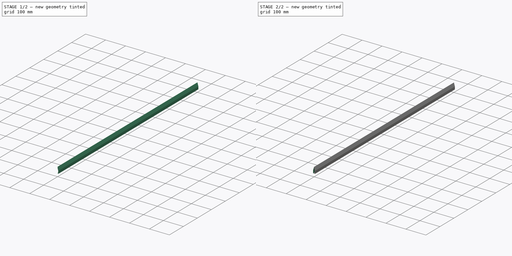
[diagram: build sequence overview — one tinted view per stage of 2, left to right]
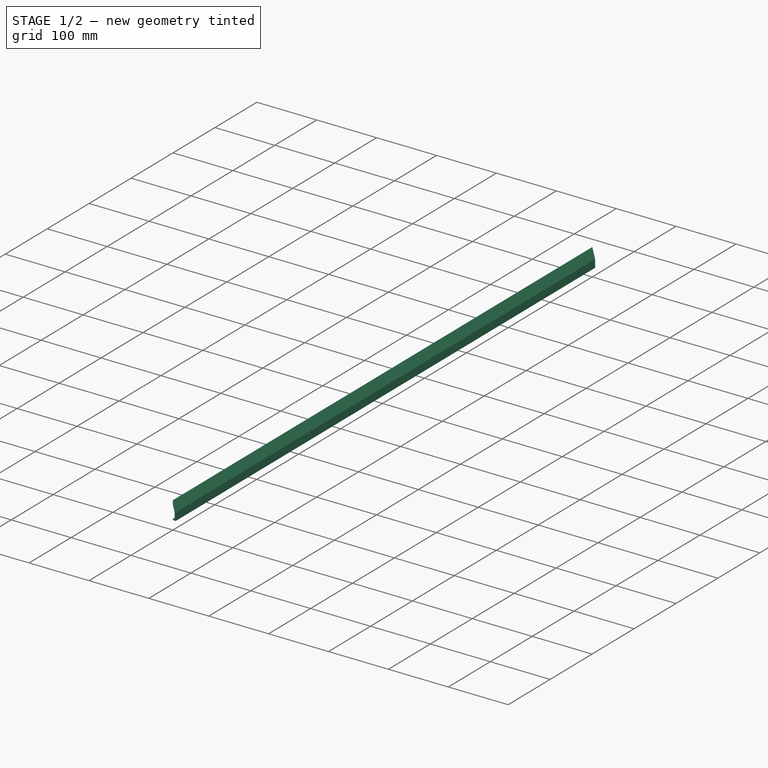
[diagram: stage 1 of 2 — iso view after this stage's code; geometry added in this stage tinted green]
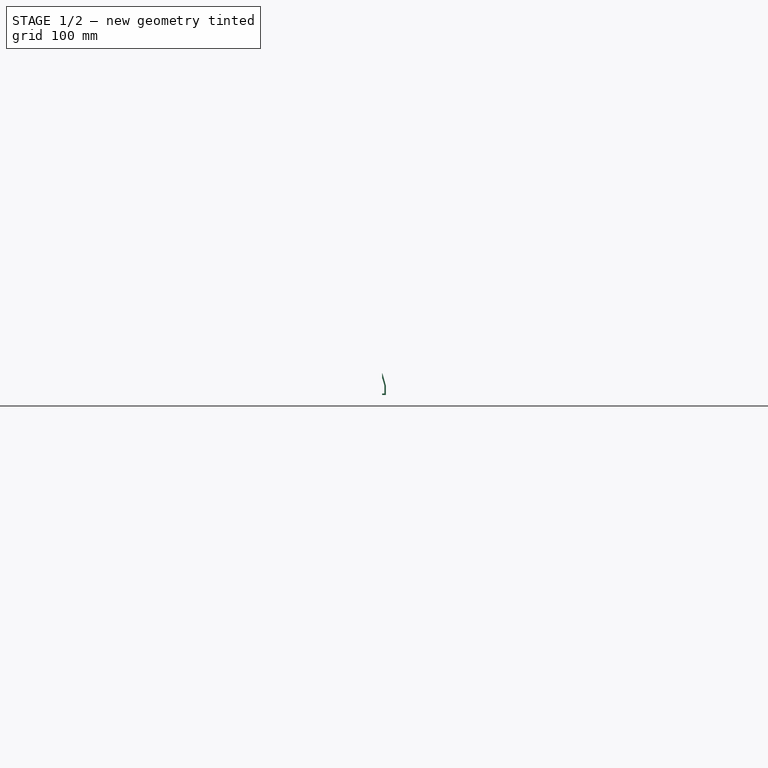
[diagram: stage 1 of 2 — front view after this stage's code; geometry added in this stage tinted green]
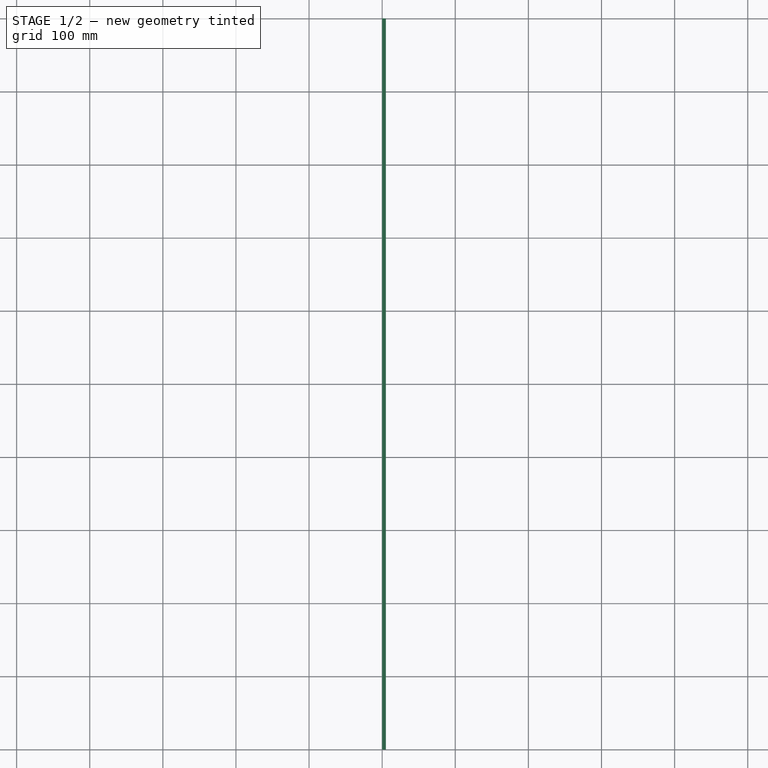
[diagram: stage 1 of 2 — top view after this stage's code; geometry added in this stage tinted green]
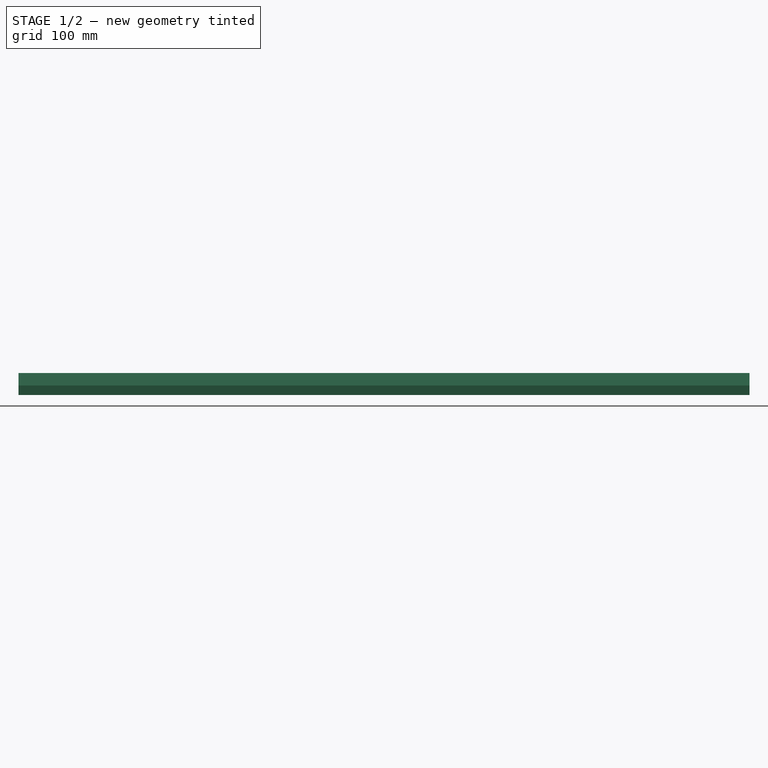
[diagram: stage 1 of 2 — right view after this stage's code; geometry added in this stage tinted green]
FCSTD DOCUMENT  (FreeCAD 0.21R32532 (Git))
Label: AL-Laser1030
License: All rights reserved
LicenseURL: http://en.wikipedia.org/wiki/All_rights_reserved
objects: PartDesign::CoordinateSystem×6, Sketcher::SketchObject×1, PartDesign::Pad×1, PartDesign::Mirrored×1, PartDesign::Body×1
note: 11 computed .brp shape members not serialized (recipe doc carries the construction recipe); baked Part::Feature solids carry a one-line shape summary decoded from their .brp

FEATURE [Sketcher::SketchObject] Sketch
  FullyConstrained = true
  MapMode = 5
  Placement = pos=(0,0,0) rot=(1,0,0;1.5708rad)
  Support = -> [XZ_Plane]
  sketch-geometry (10):
    g0: LineSegment StartX=0 StartY=0 StartZ=0 EndX=5 EndY=0 EndZ=0
    g1: LineSegment StartX=5 StartY=0 StartZ=0 EndX=5 EndY=13 EndZ=0
    g2: LineSegment StartX=5 StartY=13 StartZ=0 EndX=0.288833 EndY=29.7811 EndZ=0
    g3: LineSegment StartX=0.481389 StartY=21.9712 StartZ=0 EndX=3 EndY=13 EndZ=0
    g4: LineSegment StartX=3 StartY=13 StartZ=0 EndX=3 EndY=2 EndZ=0
    g5: LineSegment StartX=3 StartY=2 StartZ=0 EndX=0 EndY=2 EndZ=0
    g6: LineSegment StartX=0 StartY=2 StartZ=0 EndX=0 EndY=0 EndZ=0
    g7: LineSegment StartX=0 StartY=22.3361 StartZ=0 EndX=0 EndY=30 EndZ=0
    g8: ArcOfCircle CenterX=0 CenterY=21.8361 CenterZ=0 NormalX=0 NormalY=0 NormalZ=1 AngleXU=0 Radius=0.5 StartAngle=0.273697 EndAngle=1.5708
    g9: ArcOfCircle CenterX=0 CenterY=29.7 CenterZ=0 NormalX=0 NormalY=0 NormalZ=1 AngleXU=0 Radius=0.3 StartAngle=0.273697 EndAngle=1.5708
  constraints (29):
    c: Coincident(g-1,g0)
    c: PointOnObject(g0,g-1)
    c: Coincident(g0,g1)
    c: Vertical(g1)
    c: Coincident(g1,g2)
    c: Coincident(g3,g4)
    c: Vertical(g4)
    c: Coincident(g4,g5)
    c: PointOnObject(g5,g-2)
    c: Horizontal(g5)
    c: Coincident(g5,g6)
    c: Coincident(g6,g0)
    c: PointOnObject(g7,g-2)
    c: PointOnObject(g7,g-2)
    c: PointOnObject(g8,g-2)
    c: Coincident(g8,g7)
    c: PointOnObject(g9,g-2)
    c: Coincident(g9,g7)
    c: Tangent(g9,g2) = -1.5708
    c: Tangent(g8,g3) = 1.5708
    c: Diameter(g9) = 0.6
    c: Diameter(g8) = 1
    c: Distance(g0) = 5
    c: Distance(g5) = 3
    c: DistanceY(g5) = 2
    c: DistanceY(g9) = 29.7
    c: DistanceY(g1,g1) = 13
    c: DistanceY(g4,g4) = 11
    c: Parallel(g3,g2)
FEATURE [PartDesign::Pad] Pad
  Direction = (0,-1,-2e-16)
  Length = 1000
  Length2 = 10
  Placement = pos=(0,0,0) rot=(1,0,0;1.5708rad)
  Profile = -> Sketch
  ReferenceAxis = -> Sketch [N_Axis]
  Reversed = true
  Type = 0
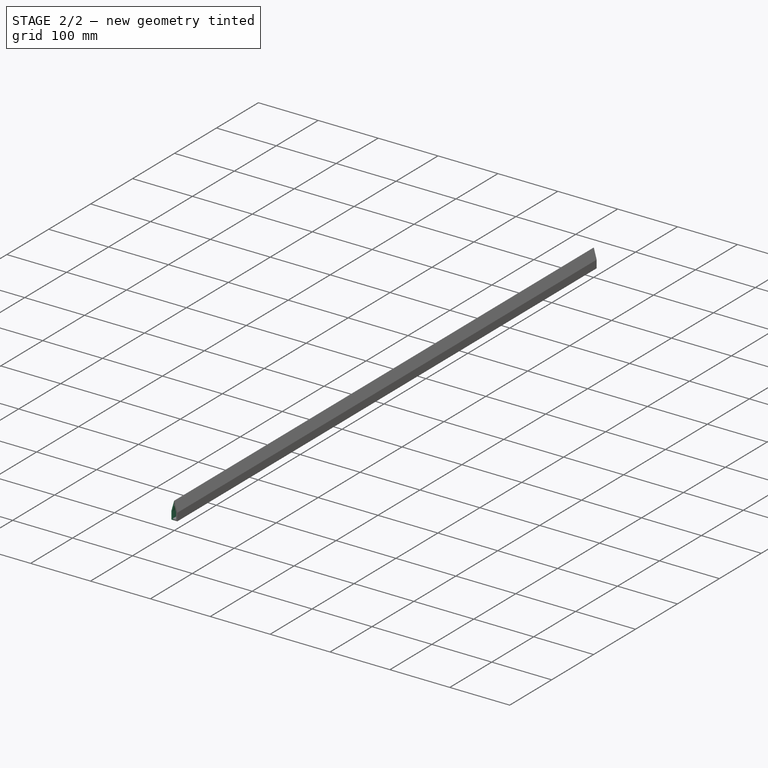
[diagram: stage 2 of 2 — iso view after this stage's code; geometry added in this stage tinted green]
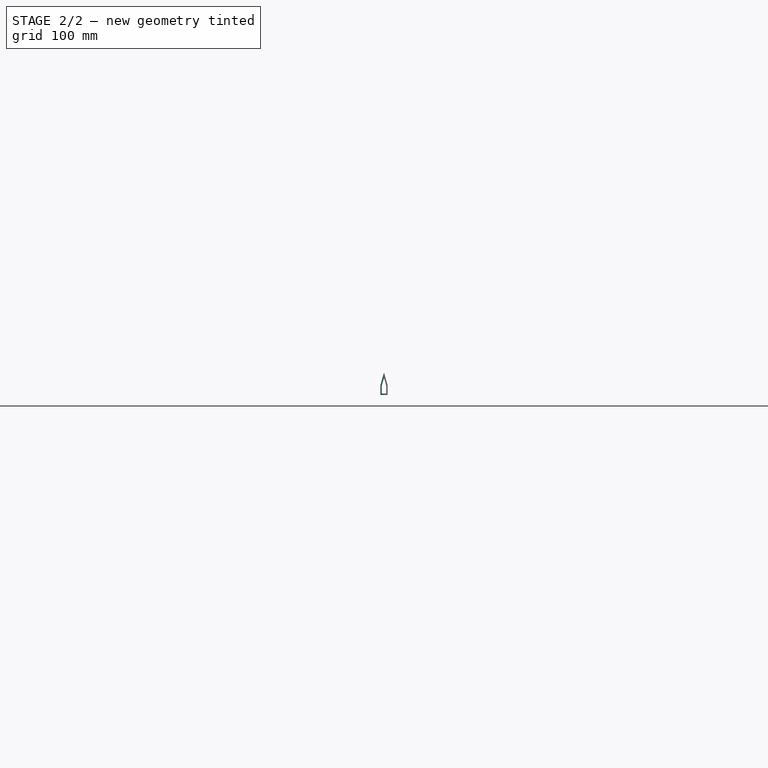
[diagram: stage 2 of 2 — front view after this stage's code; geometry added in this stage tinted green]
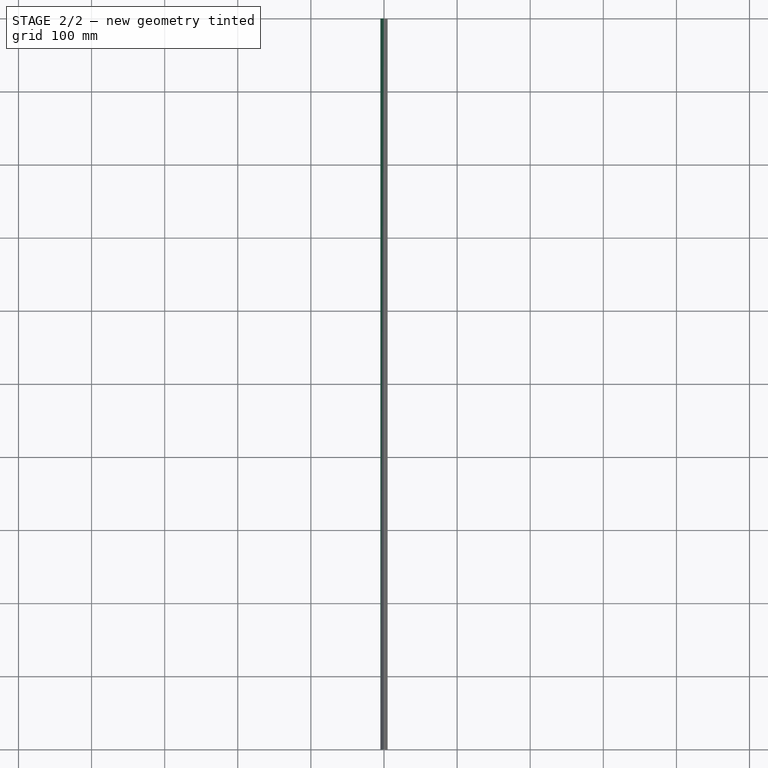
[diagram: stage 2 of 2 — top view after this stage's code; geometry added in this stage tinted green]
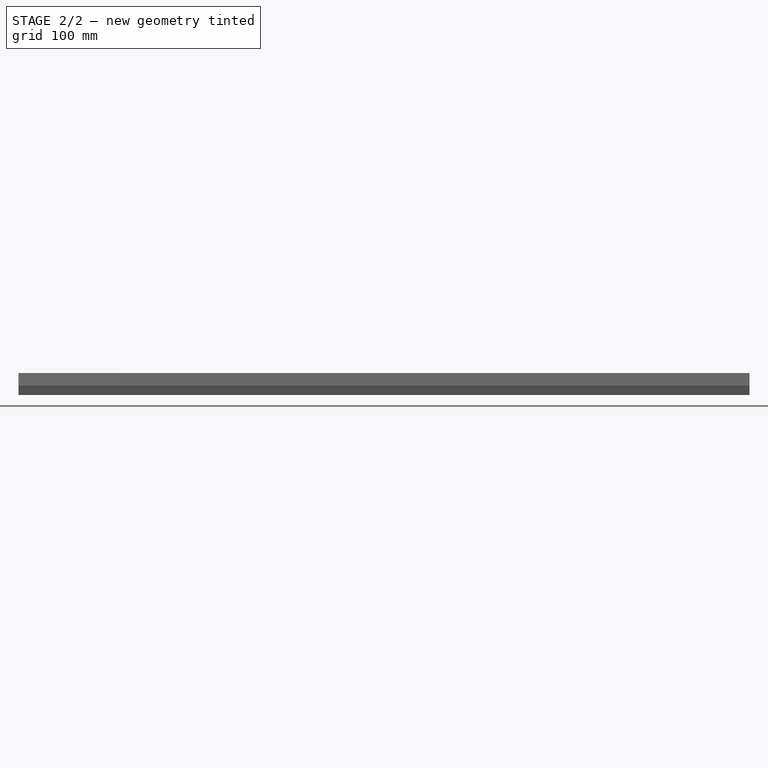
[diagram: stage 2 of 2 — right view after this stage's code; geometry added in this stage tinted green]
FEATURE [PartDesign::Mirrored] Mirrored
  BaseFeature = -> Pad
  MirrorPlane = -> Sketch [V_Axis]
  Originals = -> [Pad]
  Placement = pos=(0,0,0) rot=(1,0,0;1.5708rad)
FEATURE [PartDesign::CoordinateSystem] begin
  AttacherType = Attacher::AttachEngine3D
  AttachmentOffset = pos=(0,0,0) rot=(1,0,0;1.5708rad)
  MapMode = 5
  Placement = pos=(0,0,0) rot=(1,0,0;1.5708rad)
  Support = -> [XY_Plane]
FEATURE [PartDesign::CoordinateSystem] middle
  AttacherType = Attacher::AttachEngine3D
  AttachmentOffset = pos=(0,500,0) rot=(0,0,1;0rad)
  MapMode = 5
  Placement = pos=(0,500,0) rot=(0,0,1;0rad)
  Support = -> [XY_Plane]
  expr: .AttachmentOffset.Base.y = Pad.Length / 2
FEATURE [PartDesign::CoordinateSystem] end
  AttacherType = Attacher::AttachEngine3D
  AttachmentOffset = pos=(0,1000,0) rot=(0,0.707107,0.707107;3.14159rad)
  MapMode = 5
  Placement = pos=(0,1000,0) rot=(0,0.707107,0.707107;3.14159rad)
  Support = -> [XY_Plane]
  expr: .AttachmentOffset.Base.y = Pad.Length
FEATURE [PartDesign::CoordinateSystem] ridht_skew
  AttacherType = Attacher::AttachEngine3D
  AttachmentOffset = pos=(0,0,0) rot=(0,0,-1;1.5708rad)
  MapMode = 45
  Placement = pos=(2.64442,500,21.3905) rot=(0.517031,0.517031,0.682172;1.94427rad)
  Support = -> [Mirrored]
FEATURE [PartDesign::CoordinateSystem] left_skew
  AttacherType = Attacher::AttachEngine3D
  AttachmentOffset = pos=(0,0,0) rot=(0.707107,0.707107,0;3.14159rad)
  MapMode = 45
  Placement = pos=(-2.64442,500,21.3905) rot=(-0.517031,0.517031,0.682172;4.33891rad)
  Support = -> [Mirrored]
FEATURE [PartDesign::CoordinateSystem] Local_CS  label="edge"
  AttacherType = Attacher::AttachEngine3D
  AttachmentOffset = pos=(0,0,0) rot=(-0.57735,-0.57735,-0.57735;2.0944rad)
  MapMode = 45
  Placement = pos=(0,500,30) rot=(0,0,1;1.5708rad)
  Support = -> [Mirrored]
FEATURE [PartDesign::Body] Body  label="profile1030"
  Group = -> [Sketch,Pad,Mirrored,begin,middle,end,ridht_skew,left_skew,Local_CS]
  Origin = -> Origin
  Tip = -> Mirrored
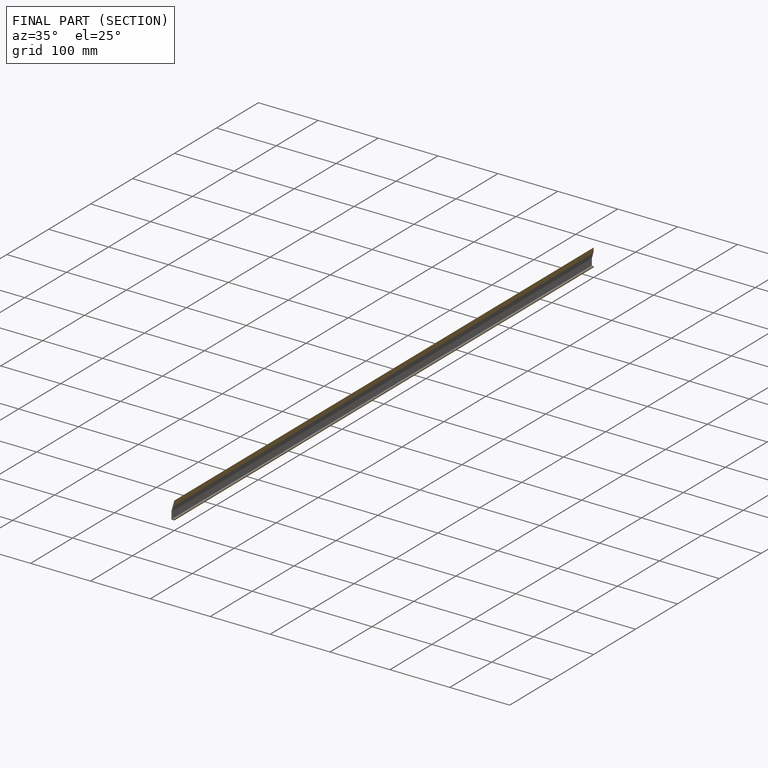
[diagram: finished part — half-section view (interior)]
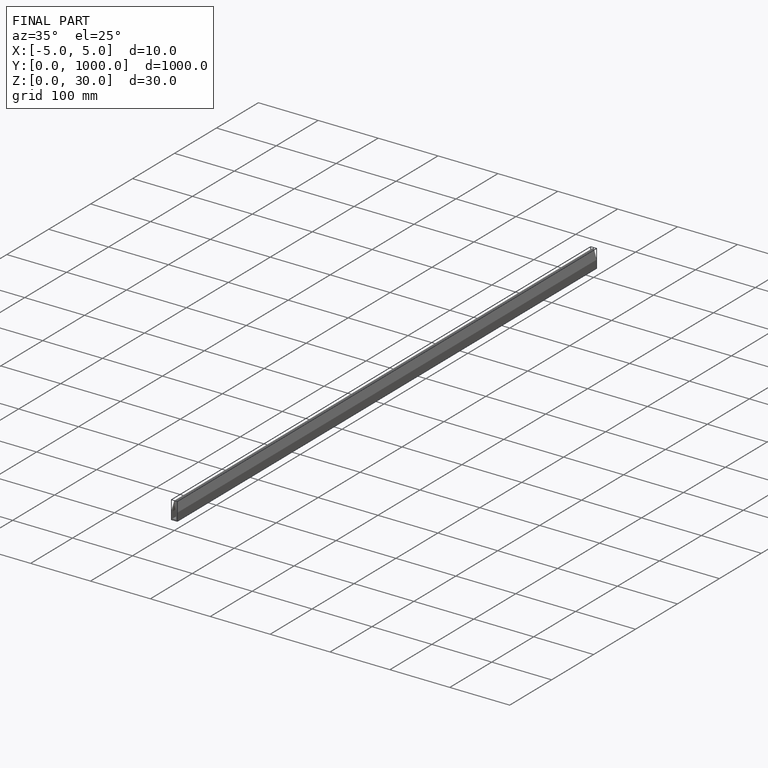
[diagram: finished part — iso view with bounding-box wireframe]
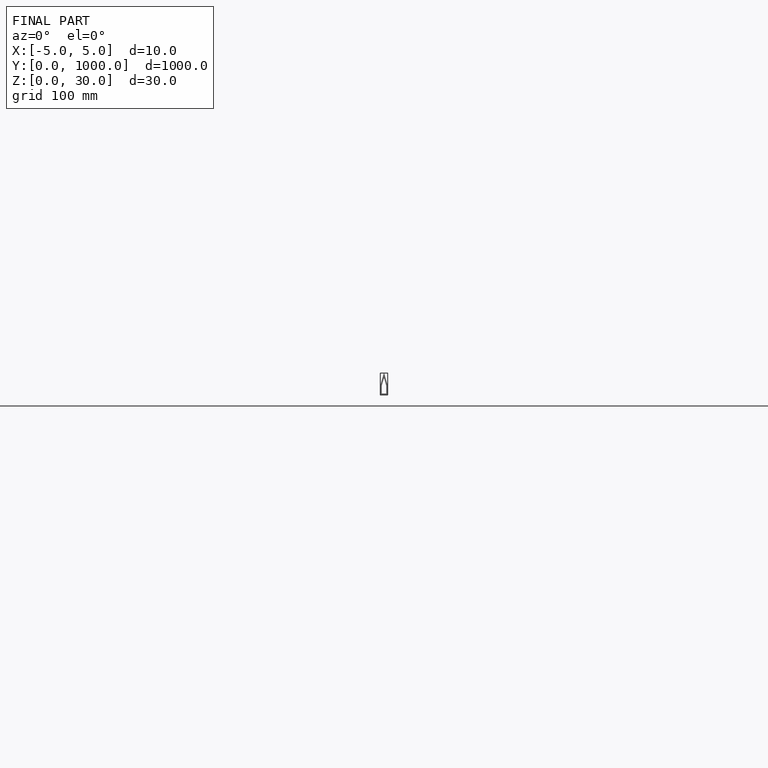
[diagram: finished part — front view with bounding-box wireframe]
